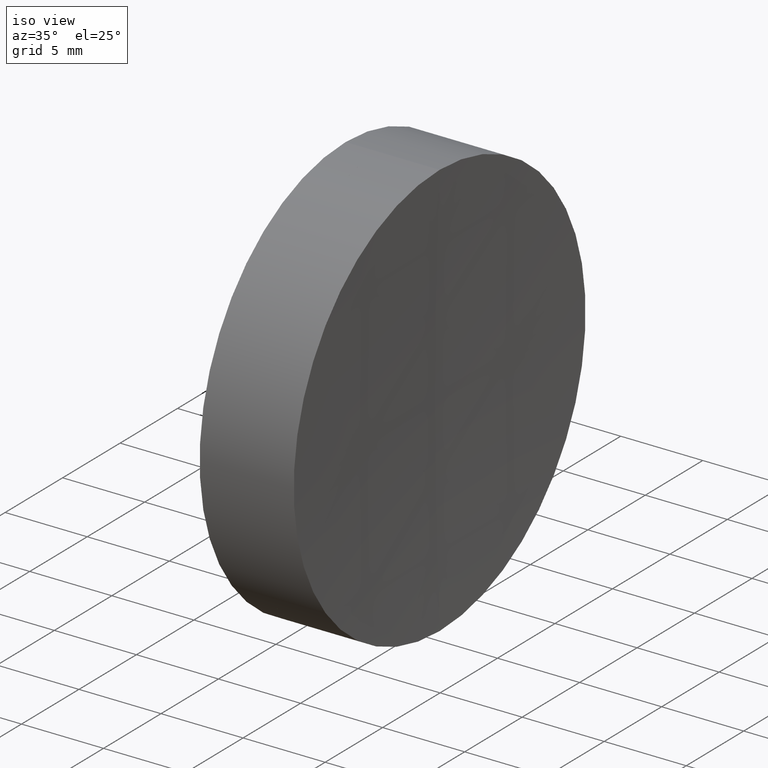
[diagram: clean part render]
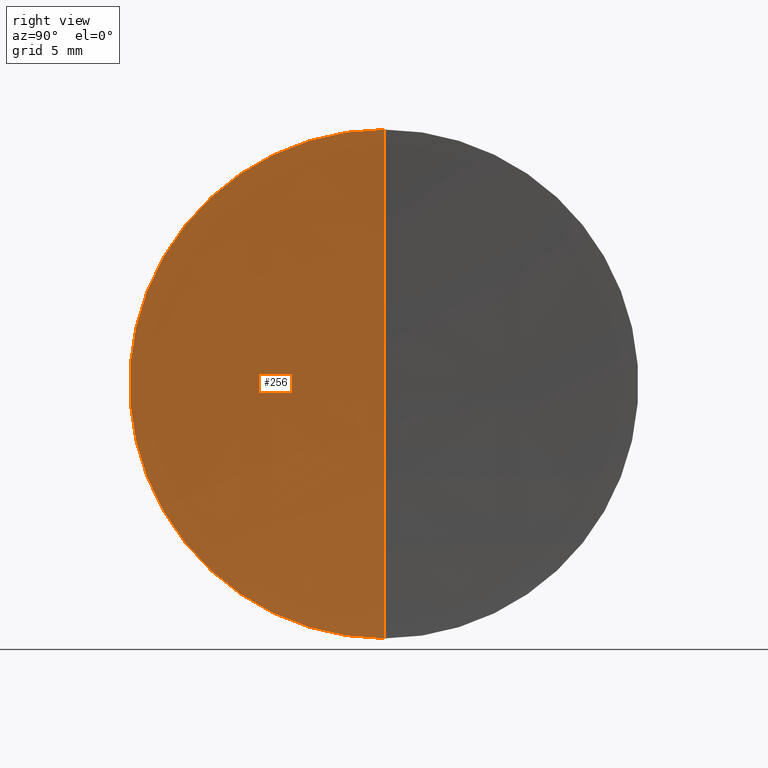
[diagram: tour spotlight — one face highlighted and labeled with its STEP entity id]
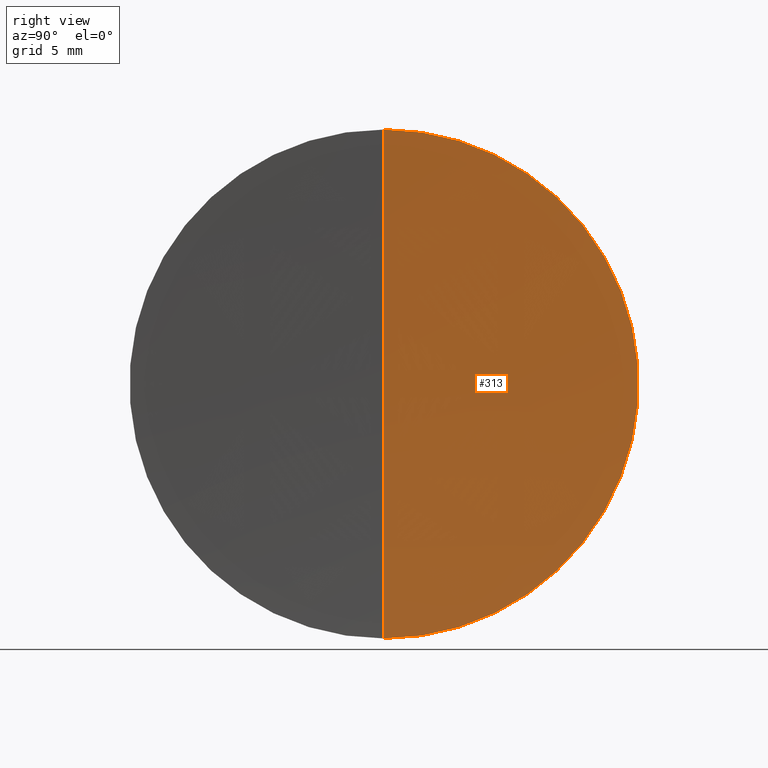
[diagram: tour spotlight — one face highlighted and labeled with its STEP entity id]
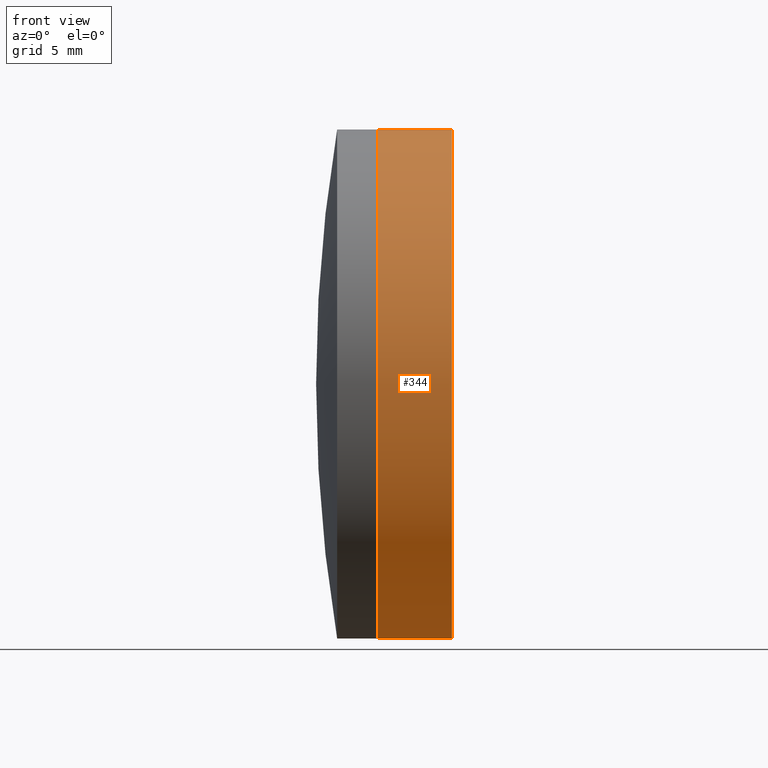
[diagram: tour spotlight — one face highlighted and labeled with its STEP entity id]
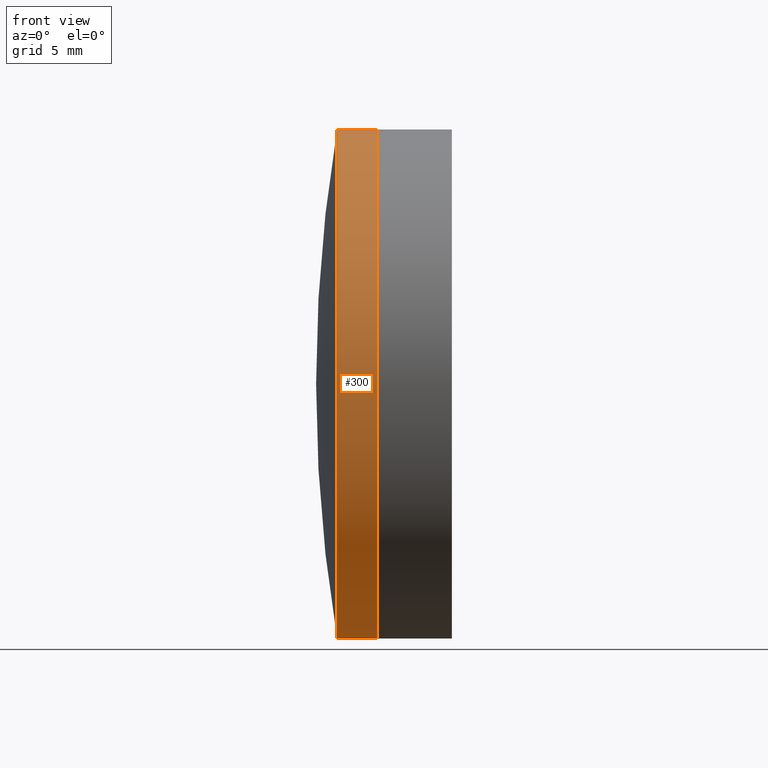
[diagram: tour spotlight — one face highlighted and labeled with its STEP entity id]
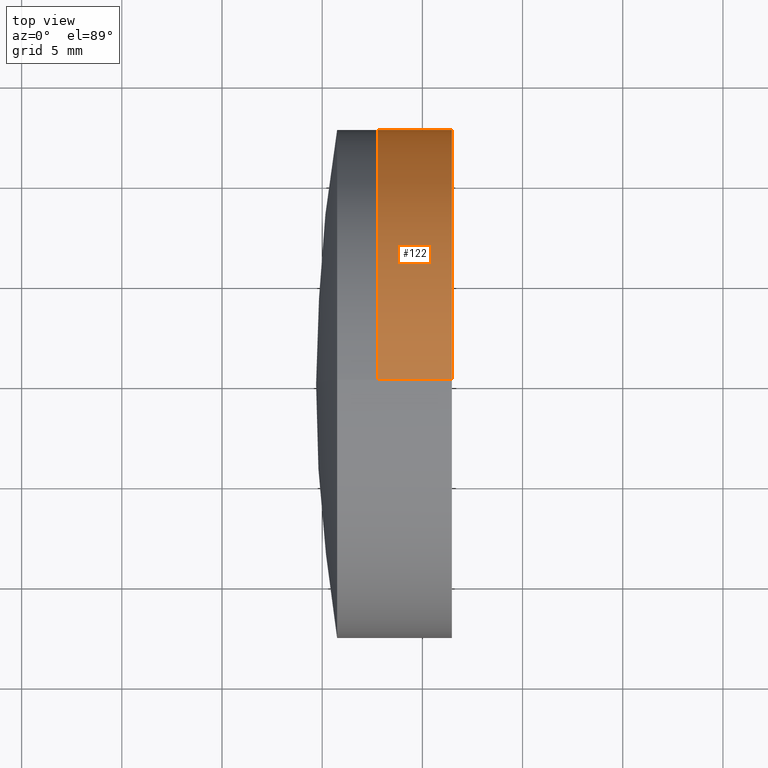
[diagram: tour spotlight — one face highlighted and labeled with its STEP entity id]
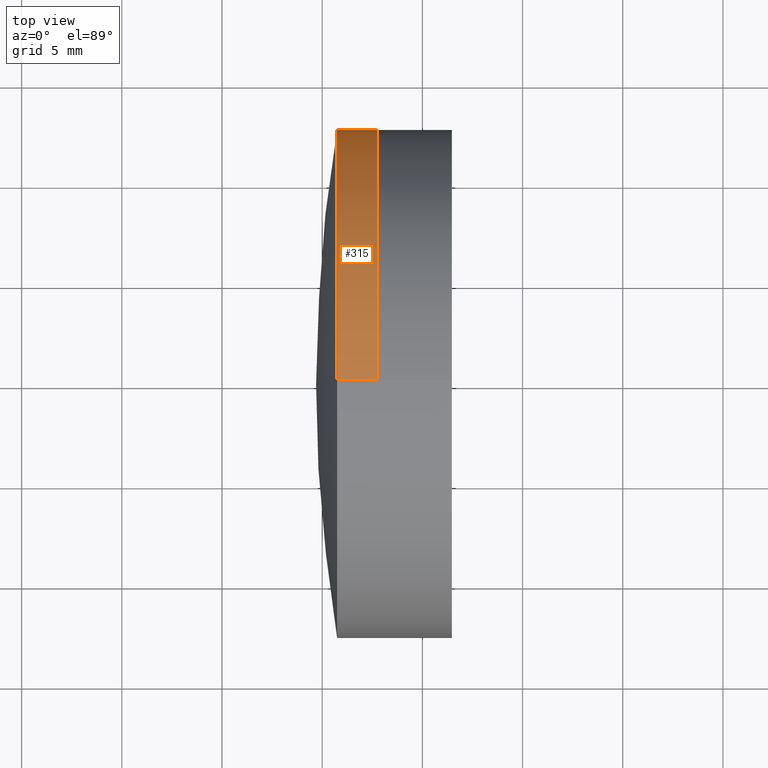
[diagram: tour spotlight — one face highlighted and labeled with its STEP entity id]
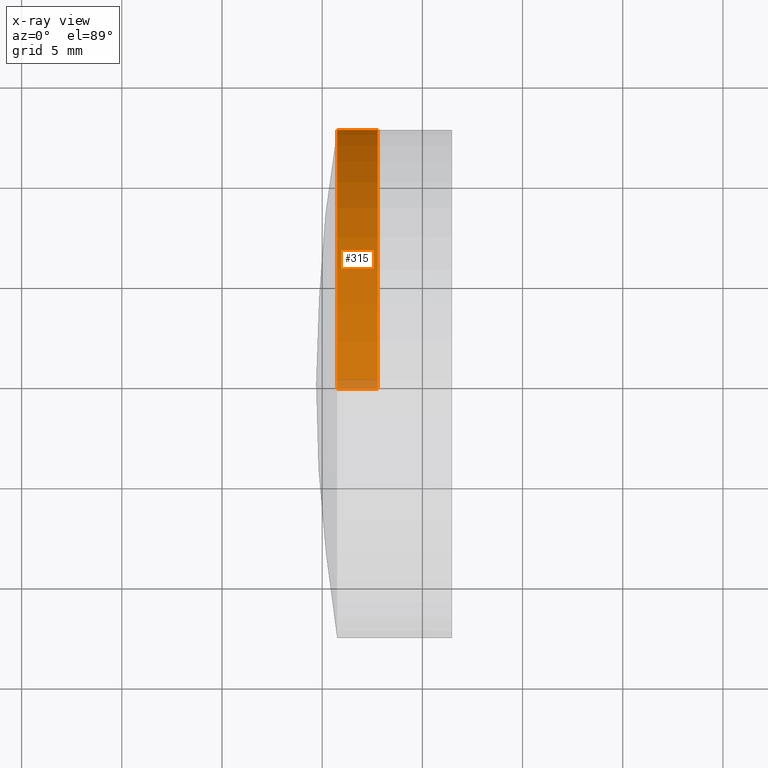
[diagram: x-ray of the same camera — body ghosted, this tour face saturated]
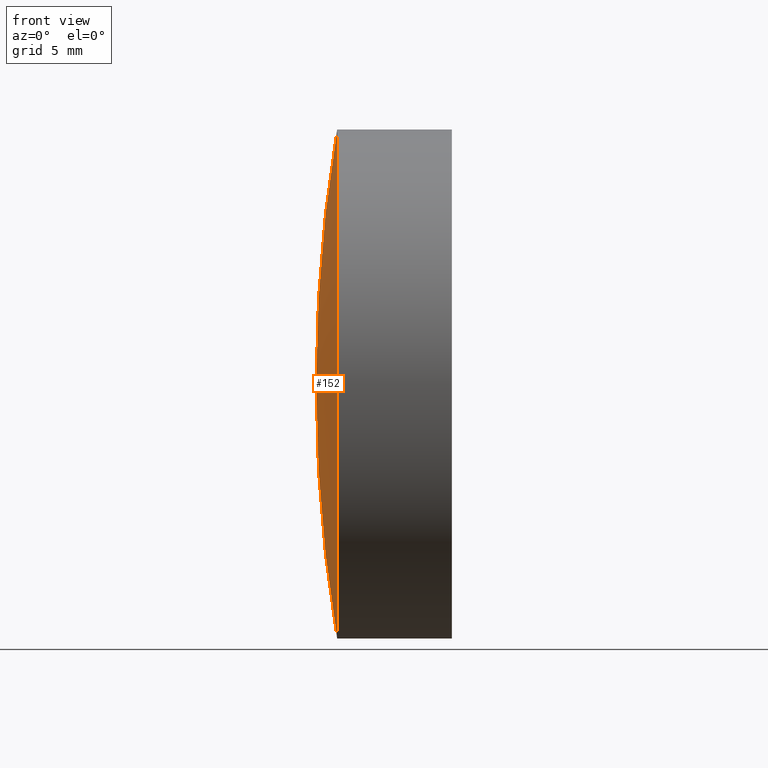
[diagram: tour spotlight — one face highlighted and labeled with its STEP entity id]
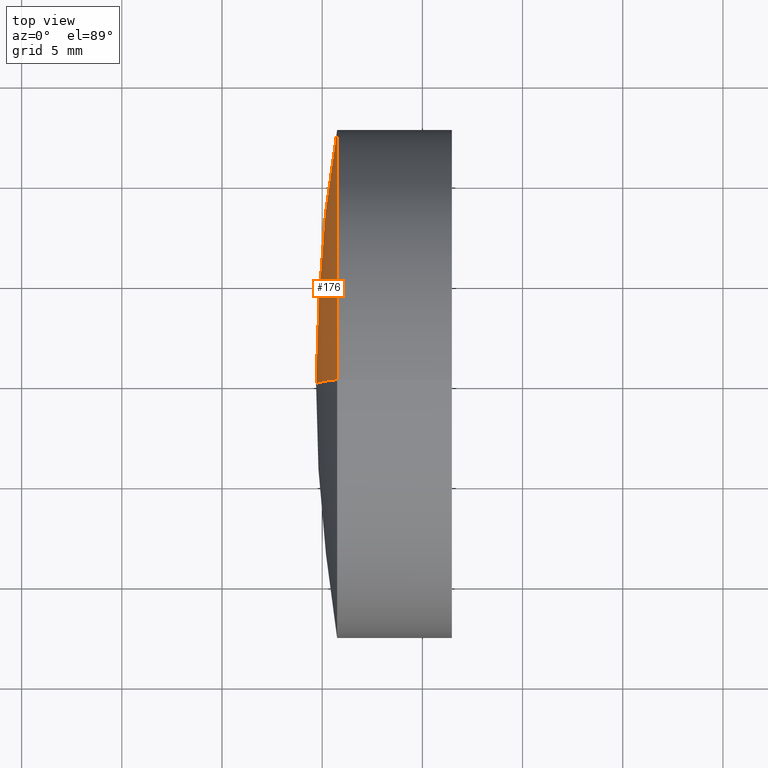
[diagram: tour spotlight — one face highlighted and labeled with its STEP entity id]
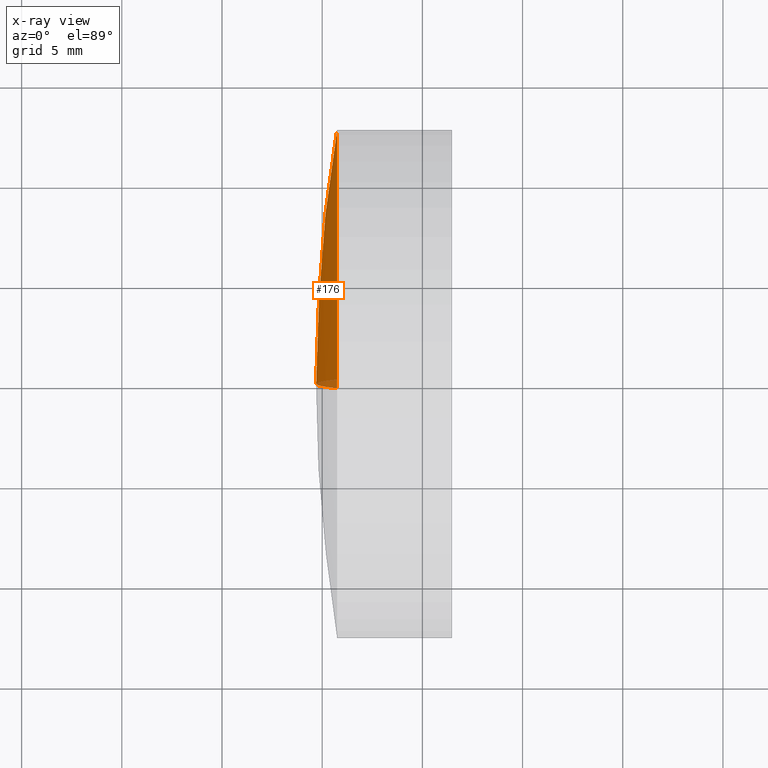
[diagram: x-ray of the same camera — body ghosted, this tour face saturated]
A machine part: a face-by-face anatomy tour. The part has 12 B-rep faces; the first image is the clean iso view, then the 8 largest visible faces are spotlighted one at a time (largest first), each with its STEP entity span.

Face 1 — right view, entity #256. In plain terms, the highlighted spherical surface has radius 291.1 mm.
Definition (entity closure, byte-faithful):
#1 = EDGE_CURVE ( 'NONE', #283, #70, #107, .T. ) ;
#4 = ORIENTED_EDGE ( 'NONE', *, *, #199, .F. ) ;
#11 = AXIS2_PLACEMENT_3D ( 'NONE', #121, #318, #115 ) ;
#19 = CARTESIAN_POINT ( 'NONE',  ( 592.2958458084195900, 0.0000000000000000000, 0.0000000000000000000 ) ) ;
#23 = AXIS2_PLACEMENT_3D ( 'NONE', #274, #204, #177 ) ;
#48 = VERTEX_POINT ( 'NONE', #312 ) ;
#70 = VERTEX_POINT ( 'NONE', #141 ) ;
#72 = DIRECTION ( 'NONE',  ( 0.0000000000000000000, 0.0000000000000000000, 1.000000000000000000 ) ) ;
#81 = ORIENTED_EDGE ( 'NONE', *, *, #149, .F. ) ;
#101 = CIRCLE ( 'NONE', #23, 12.70000000000001000 ) ;
#107 = CIRCLE ( 'NONE', #214, 291.0999999999999700 ) ;
#115 = DIRECTION ( 'NONE',  ( 0.0000000000000000000, 0.0000000000000000000, -1.000000000000000000 ) ) ;
#121 = CARTESIAN_POINT ( 'NONE',  ( 592.2958458084195900, 0.0000000000000000000, 0.0000000000000000000 ) ) ;
#137 = CIRCLE ( 'NONE', #248, 291.0999999999999700 ) ;
#141 = CARTESIAN_POINT ( 'NONE',  ( 301.1958458084195600, 0.0000000000000000000, -1.782473416158972500E-014 ) ) ;
#149 = EDGE_CURVE ( 'NONE', #48, #70, #137, .T. ) ;
#168 = DIRECTION ( 'NONE',  ( 0.0000000000000000000, 1.000000000000000000, -0.0000000000000000000 ) ) ;
#177 = DIRECTION ( 'NONE',  ( 0.0000000000000000000, 0.0000000000000000000, 1.000000000000000000 ) ) ;
#181 = CARTESIAN_POINT ( 'NONE',  ( 301.4730131422067500, 1.555301434917141200E-015, -12.70000000000001000 ) ) ;
#199 = EDGE_CURVE ( 'NONE', #283, #48, #101, .T. ) ;
#204 = DIRECTION ( 'NONE',  ( -1.000000000000000000, -0.0000000000000000000, -0.0000000000000000000 ) ) ;
#214 = AXIS2_PLACEMENT_3D ( 'NONE', #19, #168, #72 ) ;
#225 = FACE_OUTER_BOUND ( 'NONE', #277, .T. ) ;
#227 = DIRECTION ( 'NONE',  ( 0.0000000000000000000, 1.224646799147353200E-016, -1.000000000000000000 ) ) ;
#229 = DIRECTION ( 'NONE',  ( 0.0000000000000000000, -1.000000000000000000, -1.224646799147353200E-016 ) ) ;
#231 = CARTESIAN_POINT ( 'NONE',  ( 592.2958458084195900, 0.0000000000000000000, 0.0000000000000000000 ) ) ;
#248 = AXIS2_PLACEMENT_3D ( 'NONE', #231, #229, #227 ) ;
#256 = ADVANCED_FACE ( 'NONE', ( #225 ), #263, .F. ) ;
#263 = SPHERICAL_SURFACE ( 'NONE', #11, 291.0999999999999700 ) ;
#274 = CARTESIAN_POINT ( 'NONE',  ( 301.4730131422067500, 0.0000000000000000000, 0.0000000000000000000 ) ) ;
#277 = EDGE_LOOP ( 'NONE', ( #81, #4, #310 ) ) ;
#283 = VERTEX_POINT ( 'NONE', #181 ) ;
#310 = ORIENTED_EDGE ( 'NONE', *, *, #1, .T. ) ;
#312 = CARTESIAN_POINT ( 'NONE',  ( 301.4730131422067500, 0.0000000000000000000, 12.70000000000001000 ) ) ;
#318 = DIRECTION ( 'NONE',  ( -0.0000000000000000000, -1.000000000000000000, -0.0000000000000000000 ) ) ;

Face 2 — right view, entity #313. In plain terms, the highlighted spherical surface has radius 291.1 mm.
Definition (entity closure, byte-faithful):
#1 = EDGE_CURVE ( 'NONE', #283, #70, #107, .T. ) ;
#13 = DIRECTION ( 'NONE',  ( 0.0000000000000000000, 0.0000000000000000000, -1.000000000000000000 ) ) ;
#17 = ORIENTED_EDGE ( 'NONE', *, *, #1, .F. ) ;
#19 = CARTESIAN_POINT ( 'NONE',  ( 592.2958458084195900, 0.0000000000000000000, 0.0000000000000000000 ) ) ;
#33 = AXIS2_PLACEMENT_3D ( 'NONE', #142, #40, #13 ) ;
#40 = DIRECTION ( 'NONE',  ( -0.0000000000000000000, -1.000000000000000000, -0.0000000000000000000 ) ) ;
#48 = VERTEX_POINT ( 'NONE', #312 ) ;
#56 = ORIENTED_EDGE ( 'NONE', *, *, #154, .F. ) ;
#62 = EDGE_LOOP ( 'NONE', ( #56, #216, #17 ) ) ;
#70 = VERTEX_POINT ( 'NONE', #141 ) ;
#72 = DIRECTION ( 'NONE',  ( 0.0000000000000000000, 0.0000000000000000000, 1.000000000000000000 ) ) ;
#107 = CIRCLE ( 'NONE', #214, 291.0999999999999700 ) ;
#125 = DIRECTION ( 'NONE',  ( 0.0000000000000000000, 0.0000000000000000000, 1.000000000000000000 ) ) ;
#126 = DIRECTION ( 'NONE',  ( -1.000000000000000000, -0.0000000000000000000, -0.0000000000000000000 ) ) ;
#136 = AXIS2_PLACEMENT_3D ( 'NONE', #195, #126, #125 ) ;
#137 = CIRCLE ( 'NONE', #248, 291.0999999999999700 ) ;
#141 = CARTESIAN_POINT ( 'NONE',  ( 301.1958458084195600, 0.0000000000000000000, -1.782473416158972500E-014 ) ) ;
#142 = CARTESIAN_POINT ( 'NONE',  ( 592.2958458084195900, 0.0000000000000000000, 0.0000000000000000000 ) ) ;
#149 = EDGE_CURVE ( 'NONE', #48, #70, #137, .T. ) ;
#154 = EDGE_CURVE ( 'NONE', #48, #283, #308, .T. ) ;
#168 = DIRECTION ( 'NONE',  ( 0.0000000000000000000, 1.000000000000000000, -0.0000000000000000000 ) ) ;
#181 = CARTESIAN_POINT ( 'NONE',  ( 301.4730131422067500, 1.555301434917141200E-015, -12.70000000000001000 ) ) ;
#195 = CARTESIAN_POINT ( 'NONE',  ( 301.4730131422067500, 0.0000000000000000000, 0.0000000000000000000 ) ) ;
#214 = AXIS2_PLACEMENT_3D ( 'NONE', #19, #168, #72 ) ;
#216 = ORIENTED_EDGE ( 'NONE', *, *, #149, .T. ) ;
#227 = DIRECTION ( 'NONE',  ( 0.0000000000000000000, 1.224646799147353200E-016, -1.000000000000000000 ) ) ;
#229 = DIRECTION ( 'NONE',  ( 0.0000000000000000000, -1.000000000000000000, -1.224646799147353200E-016 ) ) ;
#231 = CARTESIAN_POINT ( 'NONE',  ( 592.2958458084195900, 0.0000000000000000000, 0.0000000000000000000 ) ) ;
#248 = AXIS2_PLACEMENT_3D ( 'NONE', #231, #229, #227 ) ;
#283 = VERTEX_POINT ( 'NONE', #181 ) ;
#293 = SPHERICAL_SURFACE ( 'NONE', #33, 291.0999999999999700 ) ;
#299 = FACE_OUTER_BOUND ( 'NONE', #62, .T. ) ;
#308 = CIRCLE ( 'NONE', #136, 12.70000000000001000 ) ;
#312 = CARTESIAN_POINT ( 'NONE',  ( 301.4730131422067500, 0.0000000000000000000, 12.70000000000001000 ) ) ;
#313 = ADVANCED_FACE ( 'NONE', ( #299 ), #293, .F. ) ;

Face 3 — front view, entity #344. In plain terms, the highlighted cylindrical surface (partial cylindrical patch) has radius 12.7 mm, axis along (-1, -0, -0).
Definition (entity closure, byte-faithful):
#7 = ORIENTED_EDGE ( 'NONE', *, *, #39, .F. ) ;
#8 = DIRECTION ( 'NONE',  ( 0.0000000000000000000, 0.0000000000000000000, 1.000000000000000000 ) ) ;
#15 = CIRCLE ( 'NONE', #289, 12.70000000000005100 ) ;
#23 = AXIS2_PLACEMENT_3D ( 'NONE', #274, #204, #177 ) ;
#32 = VERTEX_POINT ( 'NONE', #345 ) ;
#39 = EDGE_CURVE ( 'NONE', #283, #191, #316, .T. ) ;
#48 = VERTEX_POINT ( 'NONE', #312 ) ;
#61 = AXIS2_PLACEMENT_3D ( 'NONE', #197, #326, #8 ) ;
#67 = DIRECTION ( 'NONE',  ( -1.000000000000000000, -0.0000000000000000000, -0.0000000000000000000 ) ) ;
#75 = LINE ( 'NONE', #116, #103 ) ;
#96 = ORIENTED_EDGE ( 'NONE', *, *, #240, .F. ) ;
#101 = CIRCLE ( 'NONE', #23, 12.70000000000001000 ) ;
#103 = VECTOR ( 'NONE', #67, 1000.000000000000000 ) ;
#112 = EDGE_CURVE ( 'NONE', #48, #32, #75, .T. ) ;
#116 = CARTESIAN_POINT ( 'NONE',  ( -0.5519199926577972300, 0.0000000000000000000, 12.70000000000003100 ) ) ;
#153 = DIRECTION ( 'NONE',  ( -1.000000000000000000, -0.0000000000000000000, -0.0000000000000000000 ) ) ;
#177 = DIRECTION ( 'NONE',  ( 0.0000000000000000000, 0.0000000000000000000, 1.000000000000000000 ) ) ;
#181 = CARTESIAN_POINT ( 'NONE',  ( 301.4730131422067500, 1.555301434917141200E-015, -12.70000000000001000 ) ) ;
#185 = ORIENTED_EDGE ( 'NONE', *, *, #199, .T. ) ;
#191 = VERTEX_POINT ( 'NONE', #198 ) ;
#194 = ORIENTED_EDGE ( 'NONE', *, *, #112, .T. ) ;
#197 = CARTESIAN_POINT ( 'NONE',  ( -0.5519199926577972300, 0.0000000000000000000, 0.0000000000000000000 ) ) ;
#198 = CARTESIAN_POINT ( 'NONE',  ( 297.7703518641218900, 1.555301434917142800E-015, -12.70000000000003800 ) ) ;
#199 = EDGE_CURVE ( 'NONE', #283, #48, #101, .T. ) ;
#200 = FACE_OUTER_BOUND ( 'NONE', #295, .T. ) ;
#201 = CARTESIAN_POINT ( 'NONE',  ( 297.7703518641218900, 0.0000000000000000000, 0.0000000000000000000 ) ) ;
#204 = DIRECTION ( 'NONE',  ( -1.000000000000000000, -0.0000000000000000000, -0.0000000000000000000 ) ) ;
#211 = DIRECTION ( 'NONE',  ( 0.0000000000000000000, 0.0000000000000000000, 1.000000000000000000 ) ) ;
#240 = EDGE_CURVE ( 'NONE', #191, #32, #15, .T. ) ;
#257 = VECTOR ( 'NONE', #153, 1000.000000000000000 ) ;
#259 = CARTESIAN_POINT ( 'NONE',  ( -0.5519199926577972300, 1.555301434917142400E-015, -12.70000000000003100 ) ) ;
#274 = CARTESIAN_POINT ( 'NONE',  ( 301.4730131422067500, 0.0000000000000000000, 0.0000000000000000000 ) ) ;
#283 = VERTEX_POINT ( 'NONE', #181 ) ;
#288 = CYLINDRICAL_SURFACE ( 'NONE', #61, 12.70000000000003100 ) ;
#289 = AXIS2_PLACEMENT_3D ( 'NONE', #201, #336, #211 ) ;
#295 = EDGE_LOOP ( 'NONE', ( #7, #185, #194, #96 ) ) ;
#312 = CARTESIAN_POINT ( 'NONE',  ( 301.4730131422067500, 0.0000000000000000000, 12.70000000000001000 ) ) ;
#316 = LINE ( 'NONE', #259, #257 ) ;
#326 = DIRECTION ( 'NONE',  ( -1.000000000000000000, -0.0000000000000000000, -0.0000000000000000000 ) ) ;
#336 = DIRECTION ( 'NONE',  ( -1.000000000000000000, -0.0000000000000000000, -0.0000000000000000000 ) ) ;
#344 = ADVANCED_FACE ( 'NONE', ( #200 ), #288, .T. ) ;
#345 = CARTESIAN_POINT ( 'NONE',  ( 297.7703518641218900, 0.0000000000000000000, 12.70000000000003500 ) ) ;

Face 4 — front view, entity #300. In plain terms, the highlighted cylindrical surface (partial cylindrical patch) has radius 12.7 mm, axis along (-1, -0, -0).
Definition (entity closure, byte-faithful):
#3 = DIRECTION ( 'NONE',  ( -1.000000000000000000, -0.0000000000000000000, -0.0000000000000000000 ) ) ;
#16 = CARTESIAN_POINT ( 'NONE',  ( 235.8074506907544200, 1.555301434917138000E-015, -12.69999999999999400 ) ) ;
#20 = VECTOR ( 'NONE', #73, 1000.000000000000000 ) ;
#21 = EDGE_LOOP ( 'NONE', ( #233, #324, #133, #212 ) ) ;
#29 = LINE ( 'NONE', #309, #20 ) ;
#41 = FACE_OUTER_BOUND ( 'NONE', #21, .T. ) ;
#58 = CIRCLE ( 'NONE', #160, 12.69999999999999400 ) ;
#69 = DIRECTION ( 'NONE',  ( -1.000000000000000000, -0.0000000000000000000, -0.0000000000000000000 ) ) ;
#73 = DIRECTION ( 'NONE',  ( -1.000000000000000000, -0.0000000000000000000, -0.0000000000000000000 ) ) ;
#88 = EDGE_CURVE ( 'NONE', #330, #192, #150, .T. ) ;
#92 = DIRECTION ( 'NONE',  ( -1.000000000000000000, -0.0000000000000000000, -0.0000000000000000000 ) ) ;
#93 = CARTESIAN_POINT ( 'NONE',  ( 297.7703518641218900, 0.0000000000000000000, 0.0000000000000000000 ) ) ;
#106 = LINE ( 'NONE', #16, #268 ) ;
#109 = CARTESIAN_POINT ( 'NONE',  ( 297.7703518641218900, 1.555301434917138000E-015, -12.69999999999999400 ) ) ;
#118 = DIRECTION ( 'NONE',  ( 0.0000000000000000000, 0.0000000000000000000, 1.000000000000000000 ) ) ;
#133 = ORIENTED_EDGE ( 'NONE', *, *, #239, .T. ) ;
#135 = EDGE_CURVE ( 'NONE', #330, #252, #106, .T. ) ;
#150 = CIRCLE ( 'NONE', #242, 12.69999999999999400 ) ;
#160 = AXIS2_PLACEMENT_3D ( 'NONE', #328, #210, #118 ) ;
#187 = AXIS2_PLACEMENT_3D ( 'NONE', #340, #3, #321 ) ;
#192 = VERTEX_POINT ( 'NONE', #302 ) ;
#210 = DIRECTION ( 'NONE',  ( -1.000000000000000000, -0.0000000000000000000, -0.0000000000000000000 ) ) ;
#212 = ORIENTED_EDGE ( 'NONE', *, *, #292, .F. ) ;
#233 = ORIENTED_EDGE ( 'NONE', *, *, #135, .F. ) ;
#237 = CYLINDRICAL_SURFACE ( 'NONE', #187, 12.69999999999999400 ) ;
#239 = EDGE_CURVE ( 'NONE', #192, #341, #29, .T. ) ;
#242 = AXIS2_PLACEMENT_3D ( 'NONE', #93, #92, #247 ) ;
#247 = DIRECTION ( 'NONE',  ( 0.0000000000000000000, 0.0000000000000000000, 1.000000000000000000 ) ) ;
#252 = VERTEX_POINT ( 'NONE', #311 ) ;
#268 = VECTOR ( 'NONE', #69, 1000.000000000000000 ) ;
#292 = EDGE_CURVE ( 'NONE', #252, #341, #58, .T. ) ;
#300 = ADVANCED_FACE ( 'NONE', ( #41 ), #237, .T. ) ;
#302 = CARTESIAN_POINT ( 'NONE',  ( 297.7703518641218900, 0.0000000000000000000, 12.69999999999999400 ) ) ;
#309 = CARTESIAN_POINT ( 'NONE',  ( 235.8074506907544200, 0.0000000000000000000, 12.69999999999999400 ) ) ;
#311 = CARTESIAN_POINT ( 'NONE',  ( 295.7448798682297600, 1.555301434917139000E-015, -12.70000000000001000 ) ) ;
#321 = DIRECTION ( 'NONE',  ( 0.0000000000000000000, 0.0000000000000000000, 1.000000000000000000 ) ) ;
#324 = ORIENTED_EDGE ( 'NONE', *, *, #88, .T. ) ;
#328 = CARTESIAN_POINT ( 'NONE',  ( 295.7448798682297600, 0.0000000000000000000, 0.0000000000000000000 ) ) ;
#330 = VERTEX_POINT ( 'NONE', #109 ) ;
#335 = CARTESIAN_POINT ( 'NONE',  ( 295.7448798682297600, 0.0000000000000000000, 12.70000000000000500 ) ) ;
#340 = CARTESIAN_POINT ( 'NONE',  ( 235.8074506907544200, 0.0000000000000000000, 0.0000000000000000000 ) ) ;
#341 = VERTEX_POINT ( 'NONE', #335 ) ;

Face 5 — top view, entity #122. In plain terms, the highlighted cylindrical surface (partial cylindrical patch) has radius 12.7 mm, axis along (-1, -0, -0).
Definition (entity closure, byte-faithful):
#9 = CARTESIAN_POINT ( 'NONE',  ( 297.7703518641218900, 0.0000000000000000000, 0.0000000000000000000 ) ) ;
#22 = CARTESIAN_POINT ( 'NONE',  ( -0.5519199926577972300, 0.0000000000000000000, 0.0000000000000000000 ) ) ;
#24 = DIRECTION ( 'NONE',  ( 0.0000000000000000000, 0.0000000000000000000, 1.000000000000000000 ) ) ;
#27 = EDGE_LOOP ( 'NONE', ( #226, #89, #134, #63 ) ) ;
#32 = VERTEX_POINT ( 'NONE', #345 ) ;
#39 = EDGE_CURVE ( 'NONE', #283, #191, #316, .T. ) ;
#48 = VERTEX_POINT ( 'NONE', #312 ) ;
#63 = ORIENTED_EDGE ( 'NONE', *, *, #112, .F. ) ;
#67 = DIRECTION ( 'NONE',  ( -1.000000000000000000, -0.0000000000000000000, -0.0000000000000000000 ) ) ;
#75 = LINE ( 'NONE', #116, #103 ) ;
#77 = AXIS2_PLACEMENT_3D ( 'NONE', #22, #80, #24 ) ;
#80 = DIRECTION ( 'NONE',  ( -1.000000000000000000, -0.0000000000000000000, -0.0000000000000000000 ) ) ;
#89 = ORIENTED_EDGE ( 'NONE', *, *, #39, .T. ) ;
#103 = VECTOR ( 'NONE', #67, 1000.000000000000000 ) ;
#110 = AXIS2_PLACEMENT_3D ( 'NONE', #9, #167, #250 ) ;
#112 = EDGE_CURVE ( 'NONE', #48, #32, #75, .T. ) ;
#116 = CARTESIAN_POINT ( 'NONE',  ( -0.5519199926577972300, 0.0000000000000000000, 12.70000000000003100 ) ) ;
#120 = CYLINDRICAL_SURFACE ( 'NONE', #77, 12.70000000000003100 ) ;
#122 = ADVANCED_FACE ( 'NONE', ( #265 ), #120, .T. ) ;
#125 = DIRECTION ( 'NONE',  ( 0.0000000000000000000, 0.0000000000000000000, 1.000000000000000000 ) ) ;
#126 = DIRECTION ( 'NONE',  ( -1.000000000000000000, -0.0000000000000000000, -0.0000000000000000000 ) ) ;
#127 = EDGE_CURVE ( 'NONE', #32, #191, #182, .T. ) ;
#134 = ORIENTED_EDGE ( 'NONE', *, *, #127, .F. ) ;
#136 = AXIS2_PLACEMENT_3D ( 'NONE', #195, #126, #125 ) ;
#153 = DIRECTION ( 'NONE',  ( -1.000000000000000000, -0.0000000000000000000, -0.0000000000000000000 ) ) ;
#154 = EDGE_CURVE ( 'NONE', #48, #283, #308, .T. ) ;
#167 = DIRECTION ( 'NONE',  ( -1.000000000000000000, -0.0000000000000000000, -0.0000000000000000000 ) ) ;
#181 = CARTESIAN_POINT ( 'NONE',  ( 301.4730131422067500, 1.555301434917141200E-015, -12.70000000000001000 ) ) ;
#182 = CIRCLE ( 'NONE', #110, 12.70000000000005100 ) ;
#191 = VERTEX_POINT ( 'NONE', #198 ) ;
#195 = CARTESIAN_POINT ( 'NONE',  ( 301.4730131422067500, 0.0000000000000000000, 0.0000000000000000000 ) ) ;
#198 = CARTESIAN_POINT ( 'NONE',  ( 297.7703518641218900, 1.555301434917142800E-015, -12.70000000000003800 ) ) ;
#226 = ORIENTED_EDGE ( 'NONE', *, *, #154, .T. ) ;
#250 = DIRECTION ( 'NONE',  ( 0.0000000000000000000, 0.0000000000000000000, 1.000000000000000000 ) ) ;
#257 = VECTOR ( 'NONE', #153, 1000.000000000000000 ) ;
#259 = CARTESIAN_POINT ( 'NONE',  ( -0.5519199926577972300, 1.555301434917142400E-015, -12.70000000000003100 ) ) ;
#265 = FACE_OUTER_BOUND ( 'NONE', #27, .T. ) ;
#283 = VERTEX_POINT ( 'NONE', #181 ) ;
#308 = CIRCLE ( 'NONE', #136, 12.70000000000001000 ) ;
#312 = CARTESIAN_POINT ( 'NONE',  ( 301.4730131422067500, 0.0000000000000000000, 12.70000000000001000 ) ) ;
#316 = LINE ( 'NONE', #259, #257 ) ;
#345 = CARTESIAN_POINT ( 'NONE',  ( 297.7703518641218900, 0.0000000000000000000, 12.70000000000003500 ) ) ;

Face 6 — top view, entity #315. An x-ray twin of the same camera follows (body ghosted, this face saturated) — the face is partly hidden behind the body. In plain terms, the highlighted cylindrical surface (partial cylindrical patch) has radius 12.7 mm, axis along (-1, -0, -0).
Definition (entity closure, byte-faithful):
#12 = DIRECTION ( 'NONE',  ( 0.0000000000000000000, 0.0000000000000000000, 1.000000000000000000 ) ) ;
#16 = CARTESIAN_POINT ( 'NONE',  ( 235.8074506907544200, 1.555301434917138000E-015, -12.69999999999999400 ) ) ;
#20 = VECTOR ( 'NONE', #73, 1000.000000000000000 ) ;
#29 = LINE ( 'NONE', #309, #20 ) ;
#30 = EDGE_CURVE ( 'NONE', #341, #252, #44, .T. ) ;
#44 = CIRCLE ( 'NONE', #319, 12.69999999999999400 ) ;
#50 = CYLINDRICAL_SURFACE ( 'NONE', #304, 12.69999999999999400 ) ;
#60 = ORIENTED_EDGE ( 'NONE', *, *, #239, .F. ) ;
#69 = DIRECTION ( 'NONE',  ( -1.000000000000000000, -0.0000000000000000000, -0.0000000000000000000 ) ) ;
#73 = DIRECTION ( 'NONE',  ( -1.000000000000000000, -0.0000000000000000000, -0.0000000000000000000 ) ) ;
#85 = ORIENTED_EDGE ( 'NONE', *, *, #135, .T. ) ;
#106 = LINE ( 'NONE', #16, #268 ) ;
#109 = CARTESIAN_POINT ( 'NONE',  ( 297.7703518641218900, 1.555301434917138000E-015, -12.69999999999999400 ) ) ;
#135 = EDGE_CURVE ( 'NONE', #330, #252, #106, .T. ) ;
#138 = ORIENTED_EDGE ( 'NONE', *, *, #30, .F. ) ;
#144 = CARTESIAN_POINT ( 'NONE',  ( 295.7448798682297600, 0.0000000000000000000, 0.0000000000000000000 ) ) ;
#146 = DIRECTION ( 'NONE',  ( -1.000000000000000000, -0.0000000000000000000, -0.0000000000000000000 ) ) ;
#148 = DIRECTION ( 'NONE',  ( 0.0000000000000000000, 0.0000000000000000000, 1.000000000000000000 ) ) ;
#158 = DIRECTION ( 'NONE',  ( -1.000000000000000000, -0.0000000000000000000, -0.0000000000000000000 ) ) ;
#190 = EDGE_LOOP ( 'NONE', ( #217, #85, #138, #60 ) ) ;
#192 = VERTEX_POINT ( 'NONE', #302 ) ;
#217 = ORIENTED_EDGE ( 'NONE', *, *, #294, .T. ) ;
#232 = CIRCLE ( 'NONE', #346, 12.69999999999999400 ) ;
#239 = EDGE_CURVE ( 'NONE', #192, #341, #29, .T. ) ;
#252 = VERTEX_POINT ( 'NONE', #311 ) ;
#262 = CARTESIAN_POINT ( 'NONE',  ( 297.7703518641218900, 0.0000000000000000000, 0.0000000000000000000 ) ) ;
#268 = VECTOR ( 'NONE', #69, 1000.000000000000000 ) ;
#290 = DIRECTION ( 'NONE',  ( 0.0000000000000000000, 0.0000000000000000000, 1.000000000000000000 ) ) ;
#294 = EDGE_CURVE ( 'NONE', #192, #330, #232, .T. ) ;
#302 = CARTESIAN_POINT ( 'NONE',  ( 297.7703518641218900, 0.0000000000000000000, 12.69999999999999400 ) ) ;
#304 = AXIS2_PLACEMENT_3D ( 'NONE', #331, #158, #12 ) ;
#305 = DIRECTION ( 'NONE',  ( -1.000000000000000000, -0.0000000000000000000, -0.0000000000000000000 ) ) ;
#309 = CARTESIAN_POINT ( 'NONE',  ( 235.8074506907544200, 0.0000000000000000000, 12.69999999999999400 ) ) ;
#311 = CARTESIAN_POINT ( 'NONE',  ( 295.7448798682297600, 1.555301434917139000E-015, -12.70000000000001000 ) ) ;
#315 = ADVANCED_FACE ( 'NONE', ( #323 ), #50, .T. ) ;
#319 = AXIS2_PLACEMENT_3D ( 'NONE', #144, #146, #148 ) ;
#323 = FACE_OUTER_BOUND ( 'NONE', #190, .T. ) ;
#330 = VERTEX_POINT ( 'NONE', #109 ) ;
#331 = CARTESIAN_POINT ( 'NONE',  ( 235.8074506907544200, 0.0000000000000000000, 0.0000000000000000000 ) ) ;
#335 = CARTESIAN_POINT ( 'NONE',  ( 295.7448798682297600, 0.0000000000000000000, 12.70000000000000500 ) ) ;
#341 = VERTEX_POINT ( 'NONE', #335 ) ;
#346 = AXIS2_PLACEMENT_3D ( 'NONE', #262, #305, #290 ) ;

Face 7 — front view, entity #152. In plain terms, the highlighted spherical surface has radius 77.4 mm.
Definition (entity closure, byte-faithful):
#14 = AXIS2_PLACEMENT_3D ( 'NONE', #338, #303, #306 ) ;
#51 = ORIENTED_EDGE ( 'NONE', *, *, #180, .T. ) ;
#58 = CIRCLE ( 'NONE', #160, 12.69999999999999400 ) ;
#65 = CARTESIAN_POINT ( 'NONE',  ( 294.6958458084194500, 0.0000000000000000000, -2.934967411348809700E-016 ) ) ;
#86 = EDGE_CURVE ( 'NONE', #252, #276, #97, .T. ) ;
#97 = CIRCLE ( 'NONE', #188, 77.39999999999999100 ) ;
#104 = EDGE_LOOP ( 'NONE', ( #269, #111, #51 ) ) ;
#111 = ORIENTED_EDGE ( 'NONE', *, *, #292, .T. ) ;
#117 = AXIS2_PLACEMENT_3D ( 'NONE', #243, #234, #222 ) ;
#118 = DIRECTION ( 'NONE',  ( 0.0000000000000000000, 0.0000000000000000000, 1.000000000000000000 ) ) ;
#152 = ADVANCED_FACE ( 'NONE', ( #164 ), #314, .T. ) ;
#160 = AXIS2_PLACEMENT_3D ( 'NONE', #328, #210, #118 ) ;
#164 = FACE_OUTER_BOUND ( 'NONE', #104, .T. ) ;
#169 = DIRECTION ( 'NONE',  ( -0.0000000000000000000, 1.000000000000000000, 1.224646799147353200E-016 ) ) ;
#174 = CARTESIAN_POINT ( 'NONE',  ( 372.0958458084194300, 0.0000000000000000000, -5.032879853835137900E-015 ) ) ;
#179 = DIRECTION ( 'NONE',  ( 0.0000000000000000000, -1.224646799147353500E-016, 1.000000000000000000 ) ) ;
#180 = EDGE_CURVE ( 'NONE', #341, #276, #334, .T. ) ;
#188 = AXIS2_PLACEMENT_3D ( 'NONE', #174, #169, #179 ) ;
#210 = DIRECTION ( 'NONE',  ( -1.000000000000000000, -0.0000000000000000000, -0.0000000000000000000 ) ) ;
#222 = DIRECTION ( 'NONE',  ( 0.0000000000000000000, 0.0000000000000000000, 1.000000000000000000 ) ) ;
#234 = DIRECTION ( 'NONE',  ( 0.0000000000000000000, 1.000000000000000000, 0.0000000000000000000 ) ) ;
#243 = CARTESIAN_POINT ( 'NONE',  ( 372.0958458084194300, 0.0000000000000000000, -5.032879853835137900E-015 ) ) ;
#252 = VERTEX_POINT ( 'NONE', #311 ) ;
#269 = ORIENTED_EDGE ( 'NONE', *, *, #86, .F. ) ;
#276 = VERTEX_POINT ( 'NONE', #65 ) ;
#292 = EDGE_CURVE ( 'NONE', #252, #341, #58, .T. ) ;
#303 = DIRECTION ( 'NONE',  ( 0.0000000000000000000, -1.000000000000000000, 0.0000000000000000000 ) ) ;
#306 = DIRECTION ( 'NONE',  ( 0.0000000000000000000, 0.0000000000000000000, -1.000000000000000000 ) ) ;
#311 = CARTESIAN_POINT ( 'NONE',  ( 295.7448798682297600, 1.555301434917139000E-015, -12.70000000000001000 ) ) ;
#314 = SPHERICAL_SURFACE ( 'NONE', #117, 77.39999999999999100 ) ;
#328 = CARTESIAN_POINT ( 'NONE',  ( 295.7448798682297600, 0.0000000000000000000, 0.0000000000000000000 ) ) ;
#334 = CIRCLE ( 'NONE', #14, 77.39999999999999100 ) ;
#335 = CARTESIAN_POINT ( 'NONE',  ( 295.7448798682297600, 0.0000000000000000000, 12.70000000000000500 ) ) ;
#338 = CARTESIAN_POINT ( 'NONE',  ( 372.0958458084194300, 0.0000000000000000000, -5.032879853835137900E-015 ) ) ;
#341 = VERTEX_POINT ( 'NONE', #335 ) ;

Face 8 — top view, entity #176. An x-ray twin of the same camera follows (body ghosted, this face saturated) — the face is partly hidden behind the body. In plain terms, the highlighted spherical surface has radius 77.4 mm.
Definition (entity closure, byte-faithful):
#14 = AXIS2_PLACEMENT_3D ( 'NONE', #338, #303, #306 ) ;
#30 = EDGE_CURVE ( 'NONE', #341, #252, #44, .T. ) ;
#44 = CIRCLE ( 'NONE', #319, 12.69999999999999400 ) ;
#65 = CARTESIAN_POINT ( 'NONE',  ( 294.6958458084194500, 0.0000000000000000000, -2.934967411348809700E-016 ) ) ;
#86 = EDGE_CURVE ( 'NONE', #252, #276, #97, .T. ) ;
#87 = FACE_OUTER_BOUND ( 'NONE', #347, .T. ) ;
#97 = CIRCLE ( 'NONE', #188, 77.39999999999999100 ) ;
#119 = CARTESIAN_POINT ( 'NONE',  ( 372.0958458084194300, 0.0000000000000000000, -5.032879853835137900E-015 ) ) ;
#130 = ORIENTED_EDGE ( 'NONE', *, *, #30, .T. ) ;
#144 = CARTESIAN_POINT ( 'NONE',  ( 295.7448798682297600, 0.0000000000000000000, 0.0000000000000000000 ) ) ;
#146 = DIRECTION ( 'NONE',  ( -1.000000000000000000, -0.0000000000000000000, -0.0000000000000000000 ) ) ;
#148 = DIRECTION ( 'NONE',  ( 0.0000000000000000000, 0.0000000000000000000, 1.000000000000000000 ) ) ;
#157 = AXIS2_PLACEMENT_3D ( 'NONE', #119, #213, #285 ) ;
#169 = DIRECTION ( 'NONE',  ( -0.0000000000000000000, 1.000000000000000000, 1.224646799147353200E-016 ) ) ;
#173 = ORIENTED_EDGE ( 'NONE', *, *, #86, .T. ) ;
#174 = CARTESIAN_POINT ( 'NONE',  ( 372.0958458084194300, 0.0000000000000000000, -5.032879853835137900E-015 ) ) ;
#176 = ADVANCED_FACE ( 'NONE', ( #87 ), #249, .T. ) ;
#179 = DIRECTION ( 'NONE',  ( 0.0000000000000000000, -1.224646799147353500E-016, 1.000000000000000000 ) ) ;
#180 = EDGE_CURVE ( 'NONE', #341, #276, #334, .T. ) ;
#188 = AXIS2_PLACEMENT_3D ( 'NONE', #174, #169, #179 ) ;
#213 = DIRECTION ( 'NONE',  ( 0.0000000000000000000, 1.000000000000000000, 0.0000000000000000000 ) ) ;
#249 = SPHERICAL_SURFACE ( 'NONE', #157, 77.39999999999999100 ) ;
#252 = VERTEX_POINT ( 'NONE', #311 ) ;
#276 = VERTEX_POINT ( 'NONE', #65 ) ;
#285 = DIRECTION ( 'NONE',  ( 0.0000000000000000000, 0.0000000000000000000, 1.000000000000000000 ) ) ;
#303 = DIRECTION ( 'NONE',  ( 0.0000000000000000000, -1.000000000000000000, 0.0000000000000000000 ) ) ;
#306 = DIRECTION ( 'NONE',  ( 0.0000000000000000000, 0.0000000000000000000, -1.000000000000000000 ) ) ;
#311 = CARTESIAN_POINT ( 'NONE',  ( 295.7448798682297600, 1.555301434917139000E-015, -12.70000000000001000 ) ) ;
#319 = AXIS2_PLACEMENT_3D ( 'NONE', #144, #146, #148 ) ;
#334 = CIRCLE ( 'NONE', #14, 77.39999999999999100 ) ;
#335 = CARTESIAN_POINT ( 'NONE',  ( 295.7448798682297600, 0.0000000000000000000, 12.70000000000000500 ) ) ;
#337 = ORIENTED_EDGE ( 'NONE', *, *, #180, .F. ) ;
#338 = CARTESIAN_POINT ( 'NONE',  ( 372.0958458084194300, 0.0000000000000000000, -5.032879853835137900E-015 ) ) ;
#341 = VERTEX_POINT ( 'NONE', #335 ) ;
#347 = EDGE_LOOP ( 'NONE', ( #130, #173, #337 ) ) ;